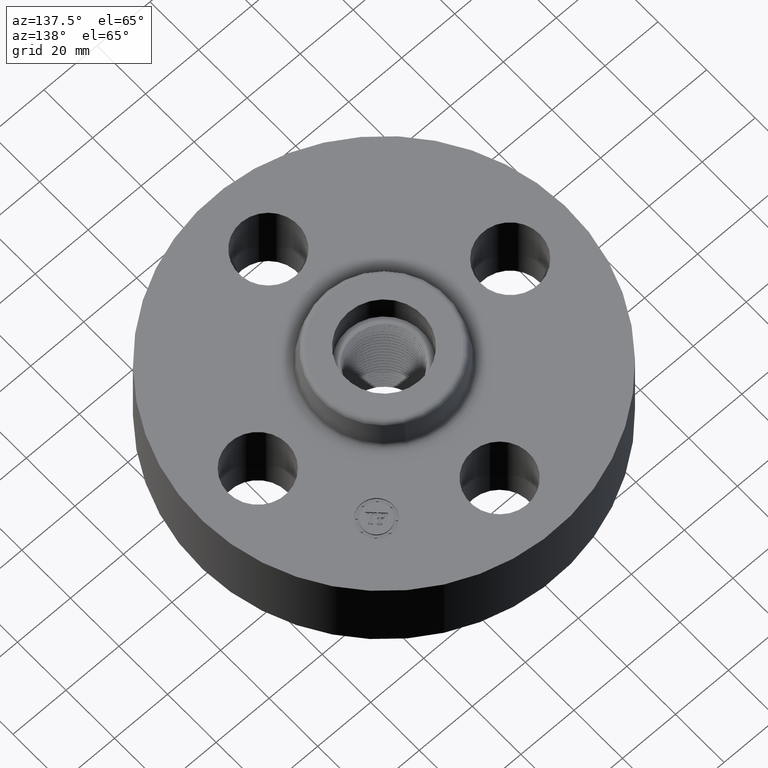
[diagram: clean part render]
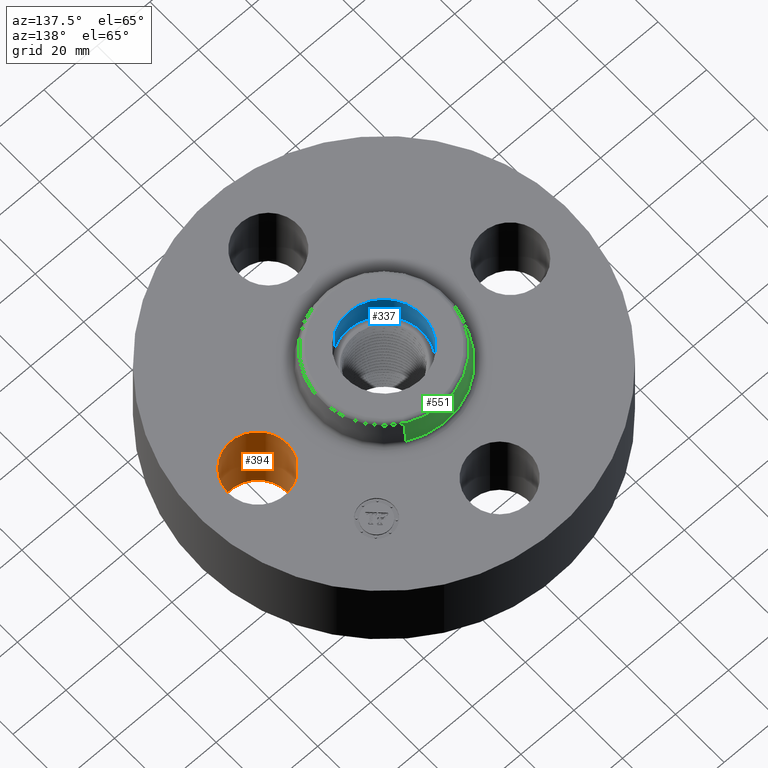
[diagram: same view with three faces highlighted in distinct colors, each labeled with its STEP entity id]
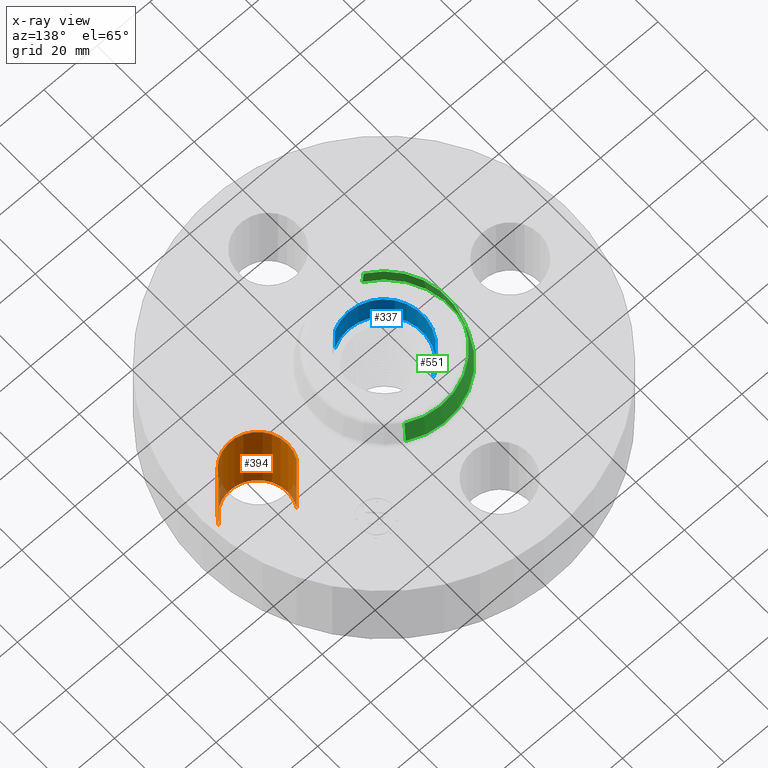
[diagram: x-ray of the same camera — body ghosted, the three highlighted faces saturated]
A machine part, auxiliary view with three faces highlighted in distinct colors.
The next image is the same camera in x-ray (body ghosted, the three faces saturated) — at least one of them is partly hidden behind the body in this view.
Their STEP definitions:

[orange] entity #394 — the highlighted cylindrical surface (partial cylindrical patch) has radius 11.176 mm, axis along (0, -0, -1).
#341=AXIS2_PLACEMENT_3D('Cylinder Axis2P3D',#338,#339,#340) ;
#380=AXIS2_PLACEMENT_3D('Circle Axis2P3D',#378,#379,$) ;
#385=AXIS2_PLACEMENT_3D('Circle Axis2P3D',#383,#384,$) ;
#338=CARTESIAN_POINT('Axis2P3D Location',(1.87500000001,0.,1.24606299213)) ;
#343=CARTESIAN_POINT('Line Origine',(1.48886367277,0.210947236987,0.625000000003)) ;
#347=CARTESIAN_POINT('Vertex',(1.48886367277,0.210947236987,0.)) ;
#349=CARTESIAN_POINT('Vertex',(1.48886367277,0.210947236987,1.25000000001)) ;
#356=CARTESIAN_POINT('Vertex',(2.26113632724,-0.210947236987,0.)) ;
#359=CARTESIAN_POINT('Line Origine',(2.26113632724,-0.210947236987,0.625000000003)) ;
#363=CARTESIAN_POINT('Vertex',(2.26113632724,-0.210947236987,1.25000000001)) ;
#378=CARTESIAN_POINT('Axis2P3D Location',(1.87500000001,0.,0.)) ;
#383=CARTESIAN_POINT('Axis2P3D Location',(1.87500000001,0.,1.25000000001)) ;
#339=DIRECTION('Axis2P3D Direction',(0.,-0.,-0.0393700787402)) ;
#340=DIRECTION('Axis2P3D XDirection',(0.0345504945626,-0.0188750212049,0.)) ;
#344=DIRECTION('Vector Direction',(0.,0.,-0.0393700787402)) ;
#360=DIRECTION('Vector Direction',(0.,0.,-0.0393700787402)) ;
#379=DIRECTION('Axis2P3D Direction',(0.,-0.,-0.0393700787402)) ;
#384=DIRECTION('Axis2P3D Direction',(0.,-0.,-0.0393700787402)) ;
#345=VECTOR('Line Direction',#344,0.0393700787402) ;
#361=VECTOR('Line Direction',#360,0.0393700787402) ;
#389=ORIENTED_EDGE('',*,*,#365,.F.) ;
#390=ORIENTED_EDGE('',*,*,#382,.T.) ;
#391=ORIENTED_EDGE('',*,*,#351,.T.) ;
#392=ORIENTED_EDGE('',*,*,#387,.F.) ;
#394=ADVANCED_FACE('PartBody',(#393),#342,.F.) ;
#381=CIRCLE('generated circle',#380,0.440000000002) ;
#386=CIRCLE('generated circle',#385,0.440000000002) ;
#342=CYLINDRICAL_SURFACE('generated cylinder',#341,0.440000000002) ;
#351=EDGE_CURVE('',#348,#350,#346,.F.) ;
#365=EDGE_CURVE('',#357,#364,#362,.F.) ;
#382=EDGE_CURVE('',#357,#348,#381,.T.) ;
#387=EDGE_CURVE('',#364,#350,#386,.T.) ;
#388=EDGE_LOOP('',(#389,#390,#391,#392)) ;
#393=FACE_OUTER_BOUND('',#388,.T.) ;
#346=LINE('Line',#343,#345) ;
#362=LINE('Line',#359,#361) ;
#348=VERTEX_POINT('',#347) ;
#350=VERTEX_POINT('',#349) ;
#357=VERTEX_POINT('',#356) ;
#364=VERTEX_POINT('',#363) ;

[blue] entity #337 — the highlighted cylindrical surface (partial cylindrical patch) has radius 14.478 mm, axis along (0, 0, 1).
#42=AXIS2_PLACEMENT_3D('Circle Axis2P3D',#40,#41,$) ;
#298=AXIS2_PLACEMENT_3D('Cylinder Axis2P3D',#295,#296,#297) ;
#328=AXIS2_PLACEMENT_3D('Circle Axis2P3D',#326,#327,$) ;
#40=CARTESIAN_POINT('Axis2P3D Location',(0.,0.,1.25000000001)) ;
#44=CARTESIAN_POINT('Vertex',(-0.273272557005,0.50022206028,1.25000000001)) ;
#46=CARTESIAN_POINT('Vertex',(0.273272557005,-0.50022206028,1.25000000001)) ;
#295=CARTESIAN_POINT('Axis2P3D Location',(0.,0.,1.25000000001)) ;
#304=CARTESIAN_POINT('Vertex',(-0.273272557005,0.50022206028,1.69000000001)) ;
#306=CARTESIAN_POINT('Vertex',(0.273272557005,-0.50022206028,1.69000000001)) ;
#309=CARTESIAN_POINT('Line Origine',(-0.273272557005,0.50022206028,1.47000000001)) ;
#314=CARTESIAN_POINT('Line Origine',(0.273272557005,-0.50022206028,1.47000000001)) ;
#326=CARTESIAN_POINT('Axis2P3D Location',(0.,0.,1.69000000001)) ;
#41=DIRECTION('Axis2P3D Direction',(0.,0.,0.0393700787402)) ;
#296=DIRECTION('Axis2P3D Direction',(0.,0.,0.0393700787402)) ;
#297=DIRECTION('Axis2P3D XDirection',(-0.0188750212049,0.0345504945626,0.)) ;
#310=DIRECTION('Vector Direction',(0.,0.,0.0393700787402)) ;
#315=DIRECTION('Vector Direction',(0.,0.,0.0393700787402)) ;
#327=DIRECTION('Axis2P3D Direction',(0.,0.,0.0393700787402)) ;
#311=VECTOR('Line Direction',#310,0.0393700787402) ;
#316=VECTOR('Line Direction',#315,0.0393700787402) ;
#332=ORIENTED_EDGE('',*,*,#330,.F.) ;
#333=ORIENTED_EDGE('',*,*,#318,.F.) ;
#334=ORIENTED_EDGE('',*,*,#48,.F.) ;
#335=ORIENTED_EDGE('',*,*,#313,.T.) ;
#337=ADVANCED_FACE('PartBody',(#336),#299,.F.) ;
#43=CIRCLE('generated circle',#42,0.570000000002) ;
#329=CIRCLE('generated circle',#328,0.570000000002) ;
#299=CYLINDRICAL_SURFACE('generated cylinder',#298,0.570000000002) ;
#48=EDGE_CURVE('',#45,#47,#43,.T.) ;
#313=EDGE_CURVE('',#45,#305,#312,.T.) ;
#318=EDGE_CURVE('',#47,#307,#317,.T.) ;
#330=EDGE_CURVE('',#307,#305,#329,.F.) ;
#331=EDGE_LOOP('',(#332,#333,#334,#335)) ;
#336=FACE_OUTER_BOUND('',#331,.T.) ;
#312=LINE('Line',#309,#311) ;
#317=LINE('Line',#314,#316) ;
#45=VERTEX_POINT('',#44) ;
#47=VERTEX_POINT('',#46) ;
#305=VERTEX_POINT('',#304) ;
#307=VERTEX_POINT('',#306) ;

[green] entity #551 — the highlighted conical surface has half-angle 10 deg.
#499=AXIS2_PLACEMENT_3D('Circle Axis2P3D',#497,#498,$) ;
#512=AXIS2_PLACEMENT_3D('Cone Axis2P3D',#509,#510,#511) ;
#542=AXIS2_PLACEMENT_3D('Circle Axis2P3D',#540,#541,$) ;
#470=CARTESIAN_POINT('Vertex',(0.475234166919,0.869910307483,1.29958110935)) ;
#477=CARTESIAN_POINT('Vertex',(-0.475234166919,-0.869910307483,1.29958110935)) ;
#497=CARTESIAN_POINT('Axis2P3D Location',(0.,0.,1.29958110935)) ;
#509=CARTESIAN_POINT('Axis2P3D Location',(0.,0.,1.64041889067)) ;
#514=CARTESIAN_POINT('Line Origine',(0.460827693913,0.843539435532,1.47000000001)) ;
#518=CARTESIAN_POINT('Vertex',(0.446421220907,0.817168563582,1.64041889067)) ;
#525=CARTESIAN_POINT('Vertex',(-0.446421220907,-0.817168563582,1.64041889067)) ;
#528=CARTESIAN_POINT('Line Origine',(-0.460827693913,-0.843539435532,1.47000000001)) ;
#540=CARTESIAN_POINT('Axis2P3D Location',(0.,0.,1.64041889067)) ;
#498=DIRECTION('Axis2P3D Direction',(0.,0.,-0.0393700787402)) ;
#510=DIRECTION('Axis2P3D Direction',(0.,0.,-0.0393700787402)) ;
#511=DIRECTION('Axis2P3D XDirection',(-0.0188750212049,-0.0345504945626,0.)) ;
#515=DIRECTION('Vector Direction',(0.00327761303565,0.00599963041829,-0.03877195878)) ;
#529=DIRECTION('Vector Direction',(-0.00327761303565,-0.00599963041829,-0.03877195878)) ;
#541=DIRECTION('Axis2P3D Direction',(0.,0.,-0.0393700787402)) ;
#516=VECTOR('Line Direction',#515,0.0393700787402) ;
#530=VECTOR('Line Direction',#529,0.0393700787402) ;
#546=ORIENTED_EDGE('',*,*,#501,.F.) ;
#547=ORIENTED_EDGE('',*,*,#532,.T.) ;
#548=ORIENTED_EDGE('',*,*,#544,.T.) ;
#549=ORIENTED_EDGE('',*,*,#520,.F.) ;
#551=ADVANCED_FACE('PartBody',(#550),#513,.T.) ;
#500=CIRCLE('generated circle',#499,0.991257512694) ;
#543=CIRCLE('generated circle',#542,0.931158615802) ;
#513=CONICAL_SURFACE('Cone',#512,0.931158615802,0.174532925199) ;
#501=EDGE_CURVE('',#478,#471,#500,.T.) ;
#520=EDGE_CURVE('',#471,#519,#517,.F.) ;
#532=EDGE_CURVE('',#478,#526,#531,.F.) ;
#544=EDGE_CURVE('',#526,#519,#543,.T.) ;
#545=EDGE_LOOP('',(#546,#547,#548,#549)) ;
#550=FACE_OUTER_BOUND('',#545,.T.) ;
#517=LINE('Line',#514,#516) ;
#531=LINE('Line',#528,#530) ;
#471=VERTEX_POINT('',#470) ;
#478=VERTEX_POINT('',#477) ;
#519=VERTEX_POINT('',#518) ;
#526=VERTEX_POINT('',#525) ;